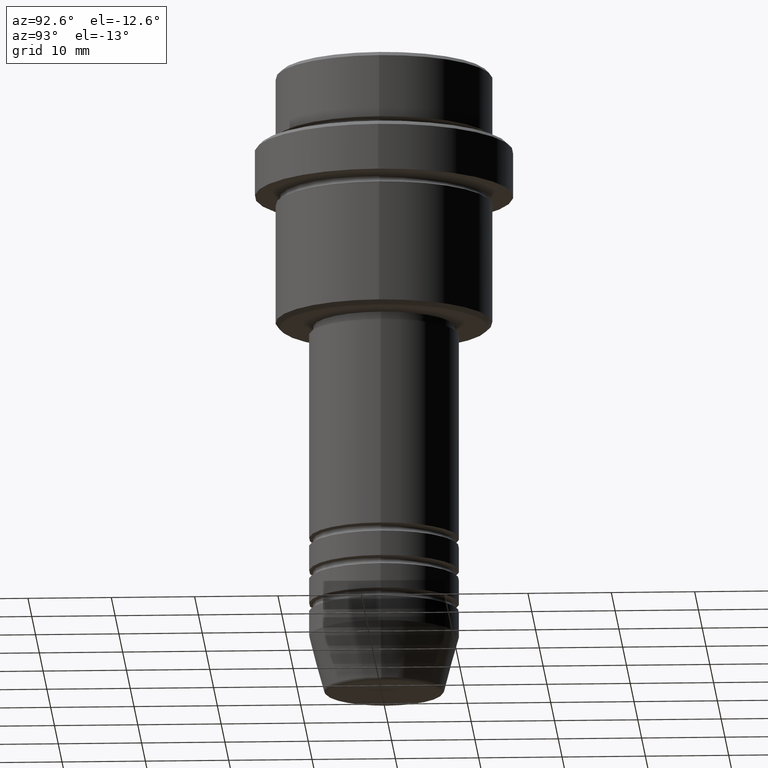
[diagram: clean part render]
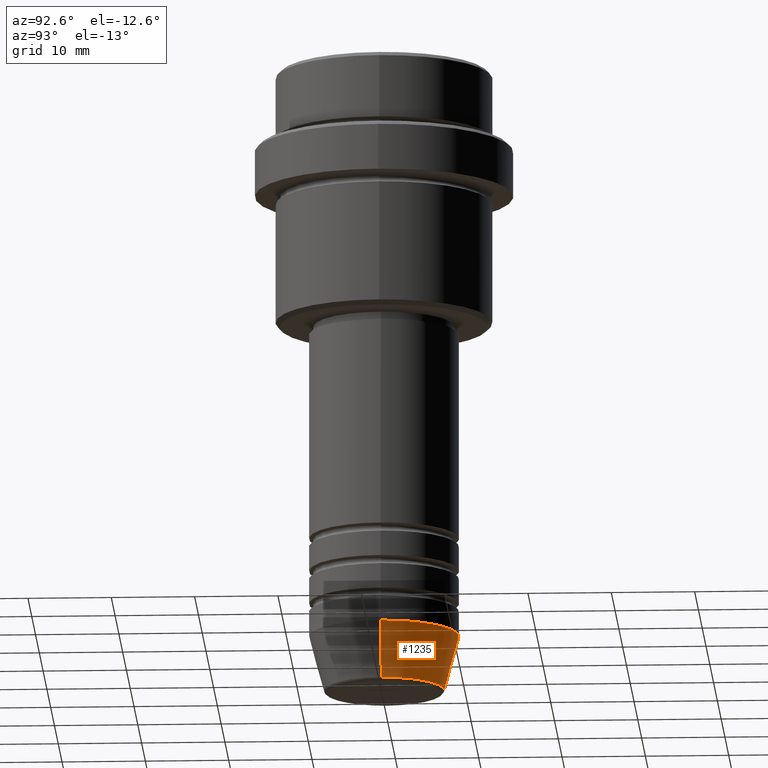
[diagram: same view with one face highlighted and labeled with its STEP entity id]
A machine part, auxiliary view. The second image highlights one B-rep face of the part: STEP entity #1235.
In plain terms, the highlighted conical surface has half-angle 15 deg.
Its self-contained STEP definition (entity closure, byte-faithful):
#9 = EDGE_CURVE ( 'NONE', #57, #1292, #236, .T. ) ;
#39 = CARTESIAN_POINT ( 'NONE',  ( 0.000000000000000000, 0.000000000000000000, -68.99999999999998579 ) ) ;
#57 = VERTEX_POINT ( 'NONE', #519 ) ;
#157 = ORIENTED_EDGE ( 'NONE', *, *, #972, .T. ) ;
#236 = LINE ( 'NONE', #1362, #1242 ) ;
#251 = CARTESIAN_POINT ( 'NONE',  ( 0.000000000000000000, 0.000000000000000000, -68.99999999999998579 ) ) ;
#274 = ORIENTED_EDGE ( 'NONE', *, *, #9, .F. ) ;
#281 = AXIS2_PLACEMENT_3D ( 'NONE', #849, #611, #939 ) ;
#282 = AXIS2_PLACEMENT_3D ( 'NONE', #251, #480, #567 ) ;
#286 = CIRCLE ( 'NONE', #281, 7.223655072137185051 ) ;
#301 = ORIENTED_EDGE ( 'NONE', *, *, #1010, .T. ) ;
#305 = DIRECTION ( 'NONE',  ( -0.2588190451025213501, 3.169619151431772337E-17, 0.9659258262890680902 ) ) ;
#412 = VERTEX_POINT ( 'NONE', #497 ) ;
#465 = VECTOR ( 'NONE', #305, 1000.000000000000000 ) ;
#480 = DIRECTION ( 'NONE',  ( -0.000000000000000000, -0.000000000000000000, 1.000000000000000000 ) ) ;
#497 = CARTESIAN_POINT ( 'NONE',  ( -7.223655072137185051, 9.934123627281761165E-16, -75.62940952255125637 ) ) ;
#519 = CARTESIAN_POINT ( 'NONE',  ( 7.223655072137185051, 0.000000000000000000, -75.62940952255125637 ) ) ;
#564 = DIRECTION ( 'NONE',  ( 0.2588190451025213501, 0.000000000000000000, 0.9659258262890680902 ) ) ;
#567 = DIRECTION ( 'NONE',  ( 1.000000000000000000, 0.000000000000000000, 0.000000000000000000 ) ) ;
#591 = FACE_OUTER_BOUND ( 'NONE', #973, .T. ) ;
#604 = AXIS2_PLACEMENT_3D ( 'NONE', #39, #679, #785 ) ;
#611 = DIRECTION ( 'NONE',  ( -0.000000000000000000, -0.000000000000000000, 1.000000000000000000 ) ) ;
#639 = VERTEX_POINT ( 'NONE', #1097 ) ;
#679 = DIRECTION ( 'NONE',  ( -0.000000000000000000, -0.000000000000000000, 1.000000000000000000 ) ) ;
#740 = CONICAL_SURFACE ( 'NONE', #282, 9.000000000000000000, 0.2617993877991500740 ) ;
#758 = CIRCLE ( 'NONE', #604, 9.000000000000000000 ) ;
#785 = DIRECTION ( 'NONE',  ( 1.000000000000000000, 0.000000000000000000, 0.000000000000000000 ) ) ;
#809 = EDGE_CURVE ( 'NONE', #1292, #639, #758, .T. ) ;
#849 = CARTESIAN_POINT ( 'NONE',  ( 0.000000000000000000, 0.000000000000000000, -75.62940952255125637 ) ) ;
#939 = DIRECTION ( 'NONE',  ( 1.000000000000000000, 0.000000000000000000, 0.000000000000000000 ) ) ;
#970 = LINE ( 'NONE', #1295, #465 ) ;
#972 = EDGE_CURVE ( 'NONE', #57, #412, #286, .T. ) ;
#973 = EDGE_LOOP ( 'NONE', ( #157, #301, #1032, #274 ) ) ;
#1010 = EDGE_CURVE ( 'NONE', #412, #639, #970, .T. ) ;
#1032 = ORIENTED_EDGE ( 'NONE', *, *, #809, .F. ) ;
#1097 = CARTESIAN_POINT ( 'NONE',  ( -9.000000000000000000, 1.102182119232617714E-15, -68.99999999999998579 ) ) ;
#1135 = CARTESIAN_POINT ( 'NONE',  ( 9.000000000000000000, 0.000000000000000000, -68.99999999999998579 ) ) ;
#1235 = ADVANCED_FACE ( 'NONE', ( #591 ), #740, .T. ) ;
#1242 = VECTOR ( 'NONE', #564, 1000.000000000000000 ) ;
#1292 = VERTEX_POINT ( 'NONE', #1135 ) ;
#1295 = CARTESIAN_POINT ( 'NONE',  ( -9.000000000000000000, 1.102182119232617714E-15, -68.99999999999998579 ) ) ;
#1362 = CARTESIAN_POINT ( 'NONE',  ( 9.000000000000000000, 0.000000000000000000, -68.99999999999998579 ) ) ;